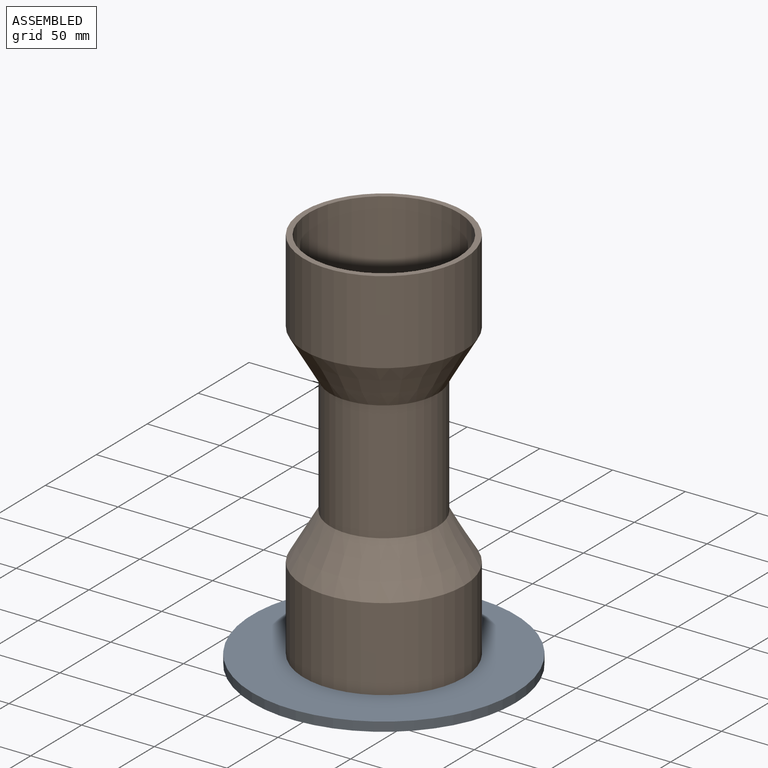
[diagram: assembled view]
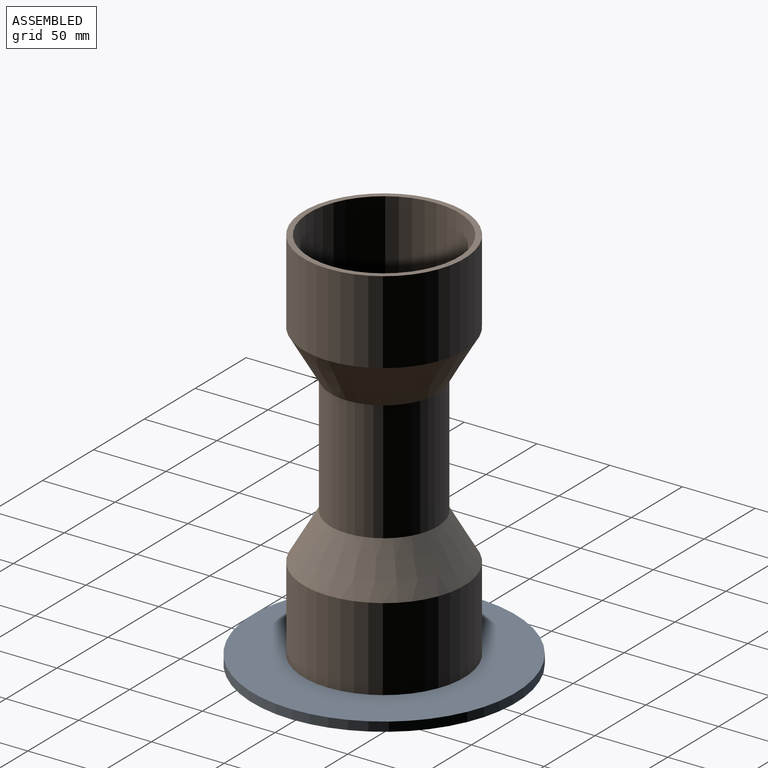
[diagram: assembled view, second angle]
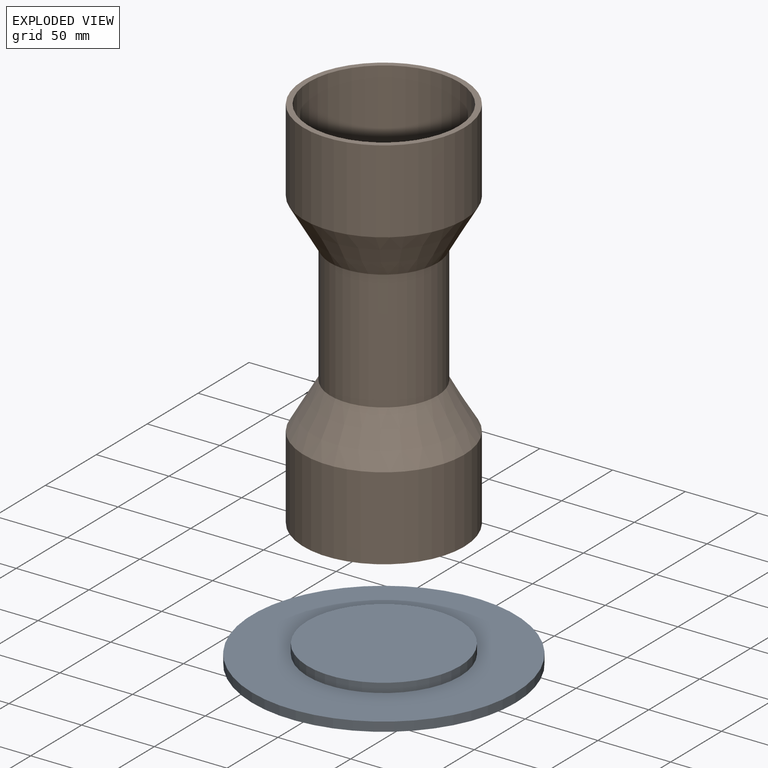
[diagram: exploded view]
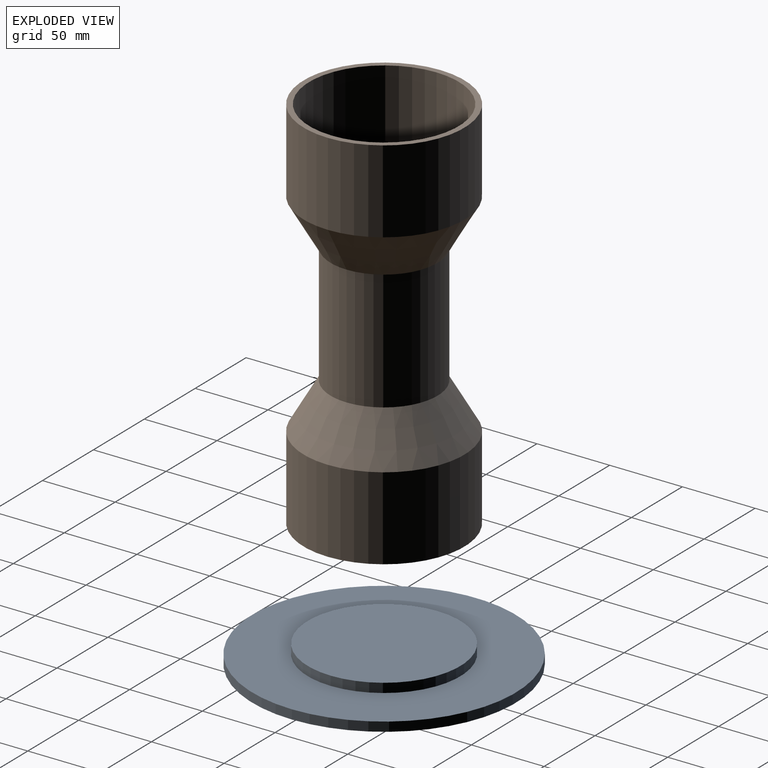
[diagram: exploded view, second angle]
ASSEMBLY  parts=2 mates=2
PART A: 5 faces, bbox 181.1x181.1x12.7 mm
  f0: plane 104.9x104.9mm, normal (0,0,1), area 8642.9mm2, adj f1
  f1: cylinder r=52.45mm len=104.9mm, axis (0,0,1), area 2092.7mm2, adj f0,f2
  f2: plane 181.1x181.1mm, normal (0,0,1), area 17116.6mm2, adj f1,f3
  f3: cylinder r=90.55mm len=181.1mm, axis (0,0,1), area 3612.8mm2, adj f2,f4
  f4: plane 181.1x181.1mm, normal (0,0,-1), area 25759.4mm2, adj f3
PART B: 12 faces, bbox 110.5x110.5x260.4 mm
  f0: plane 110.49x110.49mm, normal (0,0,1), area 1276.9mm2, adj f1,f7
  f1: cylinder r=55.25mm len=110.49mm, axis (0,0,1), area 19837.6mm2, adj f0,f2
  f2: cone r=36.83mm half-angle=30.1deg, axis (0,0,1), area 10617mm2, adj f1,f3
  f3: cylinder r=36.83mm len=82.55mm, axis (0,0,1), area 19102.9mm2, adj f2,f4
  f4: cone r=55.25mm half-angle=30.1deg, axis (0,0,-1), area 10617mm2, adj f3,f5
  f5: cylinder r=55.25mm len=110.49mm, axis (0,0,1), area 19837.6mm2, adj f4,f6
  f6: plane 110.49x110.49mm, normal (0,0,-1), area 1276.9mm2, adj f5,f11
  f7: cylinder r=51.44mm len=102.87mm, axis (0,0,1), area 18138.3mm2, adj f0,f8
  f8: cone r=33.53mm half-angle=30.1deg, axis (0,0,1), area 9738.4mm2, adj f7,f9
  f9: cylinder r=33.02mm len=84.6mm, axis (0,0,1), area 17552mm2, adj f8,f10
  f10: cone r=51.95mm half-angle=30.1deg, axis (0,0,-1), area 9738.4mm2, adj f9,f11
  f11: cylinder r=51.44mm len=102.87mm, axis (0,0,1), area 18138.3mm2, adj f6,f10
PLACE A rot(axis=(0,-0.99,0.14),0deg) t=(-100.45,4.67,107.86)mm
PLACE B rot(axis=(0,-0.99,0.14),0deg) t=(-100.45,4.67,114.21)mm
MATE fastened A.f1 <-> B.f1  axis (0,0,1) through (-100.45,4.67,114.21)mm
MATE slider A.f1 <-> B.f1  axis (0,0,1) through (-100.45,4.67,117.39)mm
